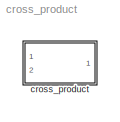
MODEL cross_product
KIND model
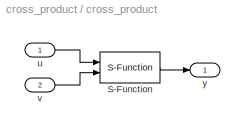
BLOCK [SubSystem] cross_product
  MinAlgLoopOccurrences = off
  Ports = [2, 1]
  RTWSystemCode = Auto
  TreatAsAtomicUnit = off
BLOCK [S-Function] cross_product/S-Function
  FunctionName = s_cross_product
  Ports = [2, 1]
BLOCK [Inport] cross_product/u
  IconDisplay = Port number
  LatchInput = off
  Port = 1
BLOCK [Inport] cross_product/v
  IconDisplay = Port number
  LatchInput = off
  Port = 2
BLOCK [Outport] cross_product/y
  BusOutputAsStruct = off
  IconDisplay = Port number
LINE cross_product/S-Function:1 -> cross_product/y:1
LINE cross_product/u:1 -> cross_product/S-Function:1
LINE cross_product/v:1 -> cross_product/S-Function:2
